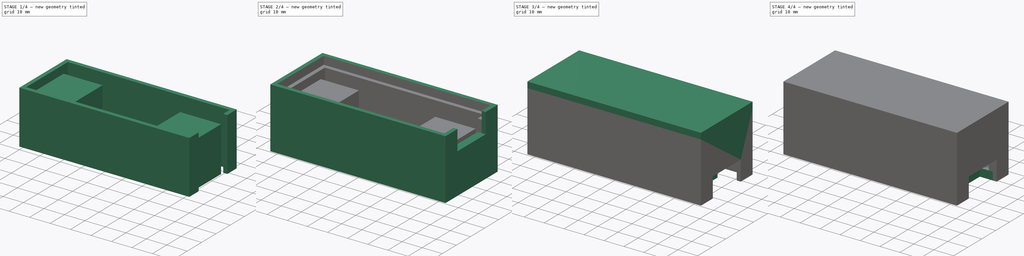
[diagram: build sequence overview — one tinted view per stage of 4, left to right]
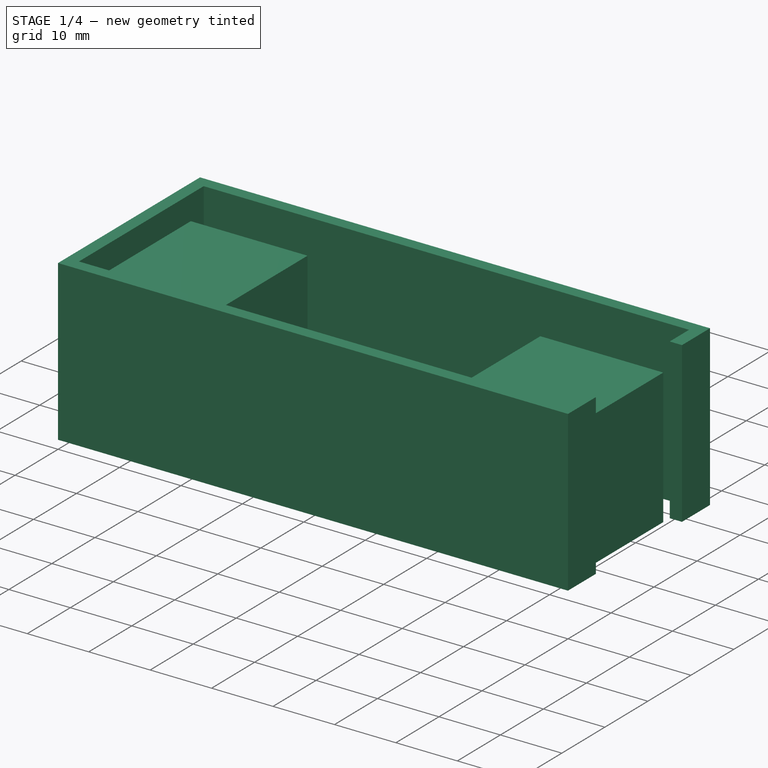
[diagram: stage 1 of 4 — iso view after this stage's code; geometry added in this stage tinted green]
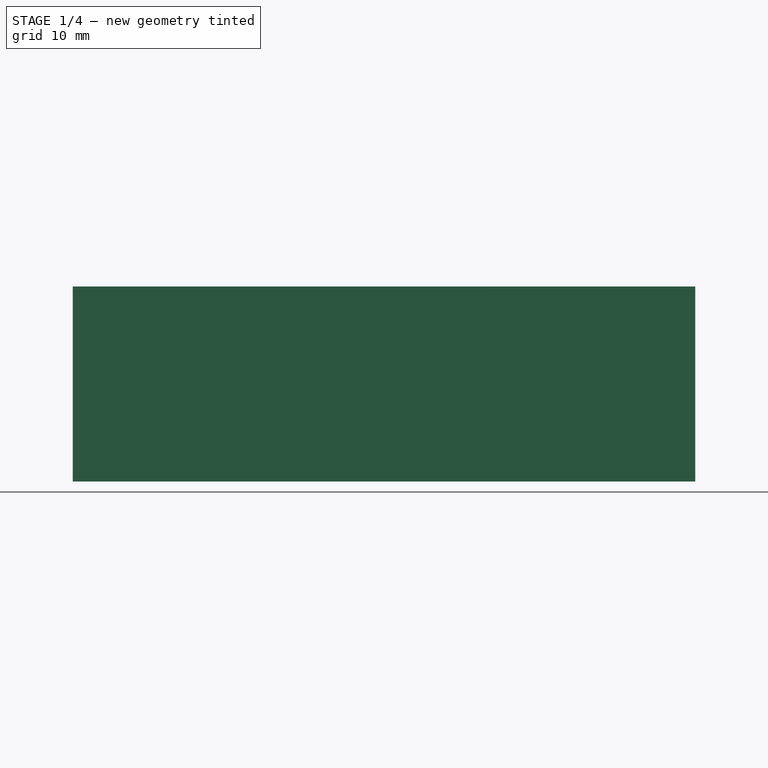
[diagram: stage 1 of 4 — front view after this stage's code; geometry added in this stage tinted green]
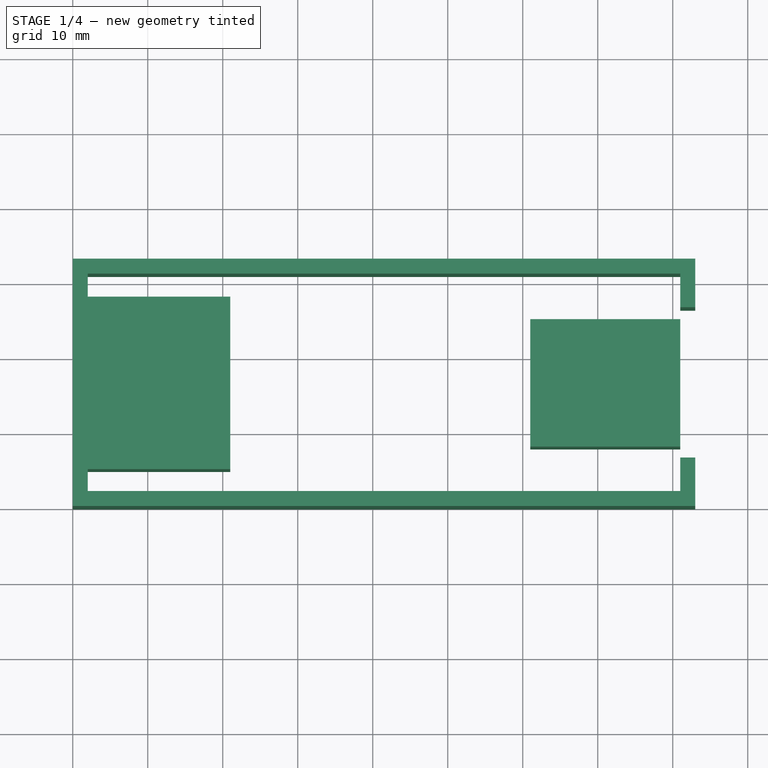
[diagram: stage 1 of 4 — top view after this stage's code; geometry added in this stage tinted green]
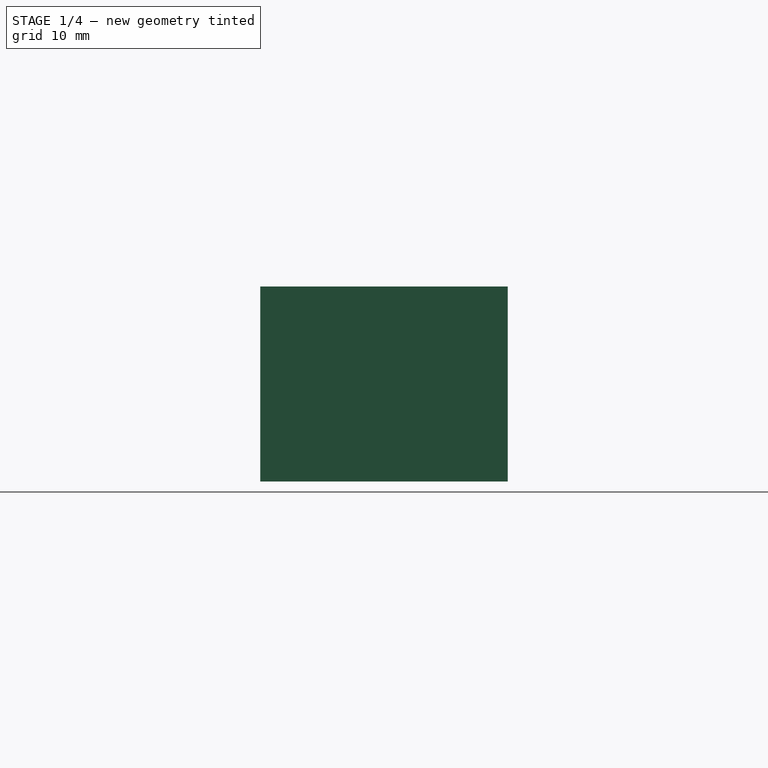
[diagram: stage 1 of 4 — right view after this stage's code; geometry added in this stage tinted green]
FCSTD DOCUMENT  (FreeCAD 1.0R39285 (Git))
Label: GPS
License: All rights reserved
LicenseURL: https://en.wikipedia.org/wiki/All_rights_reserved
objects: PartDesign::Body×10, Sketcher::SketchObject×9, PartDesign::Pad×9, PartDesign::Boolean×3
note: 61 computed .brp shape members not serialized (recipe doc carries the construction recipe); baked Part::Feature solids carry a one-line shape summary decoded from their .brp

FEATURE [PartDesign::Body] Body  label="Cuerpo"
  AllowCompound = false
  Group = -> [Sketch,Pad,Boolean,Boolean001]
  Origin = -> Origin
  Tip = -> Boolean001
FEATURE [Sketcher::SketchObject] Sketch007
  ArcFitTolerance = 1e-06
  AttachmentSupport = -> [XY_Plane007]
  FullyConstrained = true
  MakeInternals = false
  MapMode = 5
  sketch-geometry (4):
    g0: LineSegment StartX=2 StartY=28 StartZ=0 EndX=2 EndY=5 EndZ=0
    g1: LineSegment StartX=2 StartY=5 StartZ=0 EndX=21 EndY=5 EndZ=0
    g2: LineSegment StartX=21 StartY=5 StartZ=0 EndX=21 EndY=28 EndZ=0
    g3: LineSegment StartX=21 StartY=28 StartZ=0 EndX=2 EndY=28 EndZ=0
  constraints (12):
    c: Coincident(g0,g1)
    c: Coincident(g1,g2)
    c: Coincident(g2,g3)
    c: Coincident(g3,g0)
    c: Vertical(g0)
    c: Vertical(g2)
    c: Horizontal(g1)
    c: Horizontal(g3)
    c: Distance(g0,g2) = 19
    c: Distance(g1,g3) = 23
    c: Distance(g0,g-2) = 2
    c: Distance(g-1,g1) = 5
FEATURE [PartDesign::Pad] Pad006
  Direction = (0,0,1)
  Length = 22
  Length2 = 10
  Profile = -> Sketch007
  ReferenceAxis = -> Sketch007 [N_Axis]
  Refine = true
  Suppressed = false
  Type = 0
FEATURE [PartDesign::Body] Body007  label="Cuerpo007"
  AllowCompound = false
  Group = -> [Sketch007,Pad006]
  Origin = -> Origin007
  Placement = pos=(0,0,8) rot=(0,0,1;0rad)
  Tip = -> Pad006
FEATURE [Sketcher::SketchObject] Sketch008
  ArcFitTolerance = 1e-06
  AttachmentSupport = -> [XY_Plane008]
  FullyConstrained = true
  MakeInternals = false
  MapMode = 5
  sketch-geometry (4):
    g0: LineSegment StartX=61 StartY=25 StartZ=0 EndX=61 EndY=8 EndZ=0
    g1: LineSegment StartX=61 StartY=8 StartZ=0 EndX=81 EndY=8 EndZ=0
    g2: LineSegment StartX=81 StartY=8 StartZ=0 EndX=81 EndY=25 EndZ=0
    g3: LineSegment StartX=81 StartY=25 StartZ=0 EndX=61 EndY=25 EndZ=0
  constraints (12):
    c: Coincident(g0,g1)
    c: Coincident(g1,g2)
    c: Coincident(g2,g3)
    c: Coincident(g3,g0)
    c: Vertical(g0)
    c: Vertical(g2)
    c: Horizontal(g1)
    c: Horizontal(g3)
    c: Distance(g0,g2) = 20
    c: Distance(g1,g3) = 17
    c: Distance(g-1,g1) = 8
    c: Distance(g-2,g0) = 61
FEATURE [PartDesign::Pad] Pad007
  Direction = (0,0,1)
  Length = 22
  Length2 = 10
  Profile = -> Sketch008
  ReferenceAxis = -> Sketch008 [N_Axis]
  Refine = true
  Suppressed = false
  Type = 0
FEATURE [PartDesign::Body] Body008  label="Cuerpo008"
  AllowCompound = false
  Group = -> [Sketch008,Pad007]
  Origin = -> Origin008
  Placement = pos=(0,0,8) rot=(0,0,1;0rad)
  Tip = -> Pad007
FEATURE [Sketcher::SketchObject] Sketch009
  ArcFitTolerance = 1e-06
  AttachmentSupport = -> [XY_Plane009]
  FullyConstrained = false
  MakeInternals = false
  MapMode = 5
  sketch-geometry (12):
    g0: LineSegment StartX=0 StartY=0 StartZ=0 EndX=83.0002 EndY=0 EndZ=0
    g1: LineSegment StartX=83.0002 StartY=33.0006 StartZ=0 EndX=0 EndY=33.0006 EndZ=0
    g2: LineSegment StartX=0 StartY=33.0006 StartZ=0 EndX=0 EndY=0 EndZ=0
    g3: LineSegment StartX=2 StartY=2 StartZ=0 EndX=81 EndY=2 EndZ=0
    g4: LineSegment StartX=81 StartY=31 StartZ=0 EndX=2 EndY=31 EndZ=0
    g5: LineSegment StartX=2 StartY=31 StartZ=0 EndX=2 EndY=2 EndZ=0
    g6: LineSegment StartX=83.0002 StartY=6.47963 StartZ=0 EndX=81.0002 EndY=6.47963 EndZ=0
    g7: LineSegment StartX=83.0002 StartY=26.5016 StartZ=0 EndX=81.0002 EndY=26.5016 EndZ=0
    g8: LineSegment StartX=81 StartY=31 StartZ=0 EndX=81.0002 EndY=26.5016 EndZ=0
    g9: LineSegment StartX=81.0002 StartY=6.47963 StartZ=0 EndX=81 EndY=2 EndZ=0
    g10: LineSegment StartX=83.0002 StartY=33.0006 StartZ=0 EndX=83.0002 EndY=26.5016 EndZ=0
    g11: LineSegment StartX=83.0002 StartY=6.47963 StartZ=0 EndX=83.0002 EndY=0 EndZ=0
  constraints (17):
    c: Coincident(g1,g2)
    c: Coincident(g2,g0)
    c: Horizontal(g0)
    c: Horizontal(g1)
    c: Vertical(g2)
    c: Coincident(g0,g-1)
    c: Coincident(g4,g5)
    c: Coincident(g5,g3)
    c: Horizontal(g3)
    c: Horizontal(g4)
    c: Vertical(g5)
    c: Distance(g3,g5) = 79
    c: Distance(g3,g4) = 29
    c: Distance(g3,g-1) = 2
    c: Distance(g5,g-2) = 2
    c: Distance(g6) = 2
    c: Horizontal(g6)
FEATURE [PartDesign::Pad] Pad008
  Direction = (0,0,1)
  Length = 26
  Length2 = 10
  Profile = -> Sketch009
  ReferenceAxis = -> Sketch009 [N_Axis]
  Refine = true
  Suppressed = false
  Type = 0
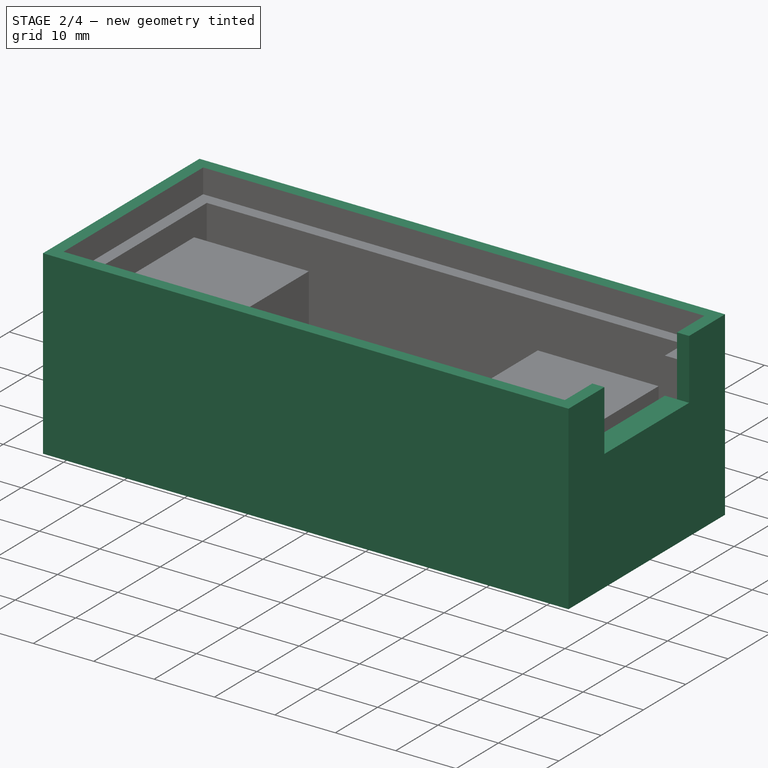
[diagram: stage 2 of 4 — iso view after this stage's code; geometry added in this stage tinted green]
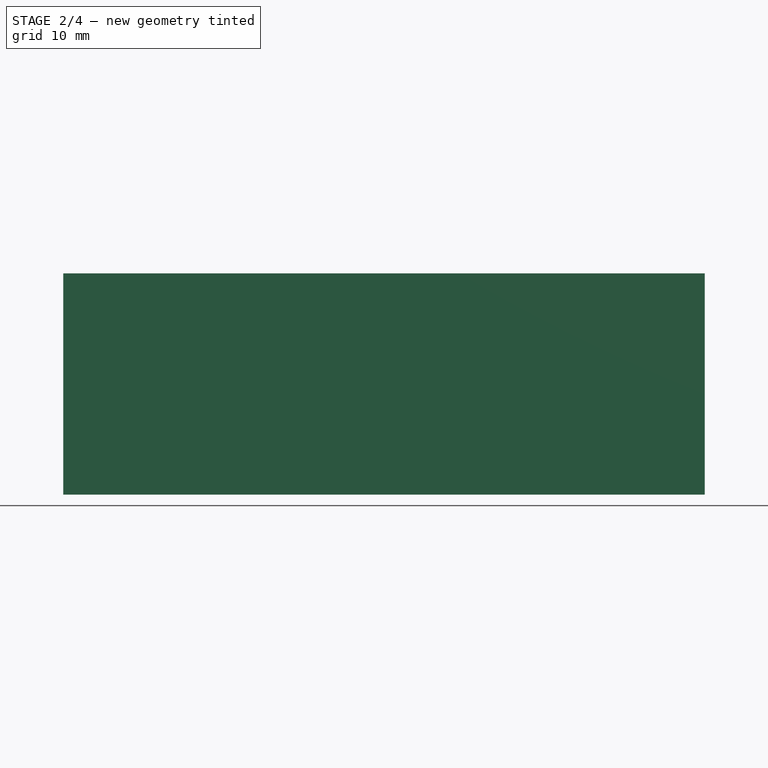
[diagram: stage 2 of 4 — front view after this stage's code; geometry added in this stage tinted green]
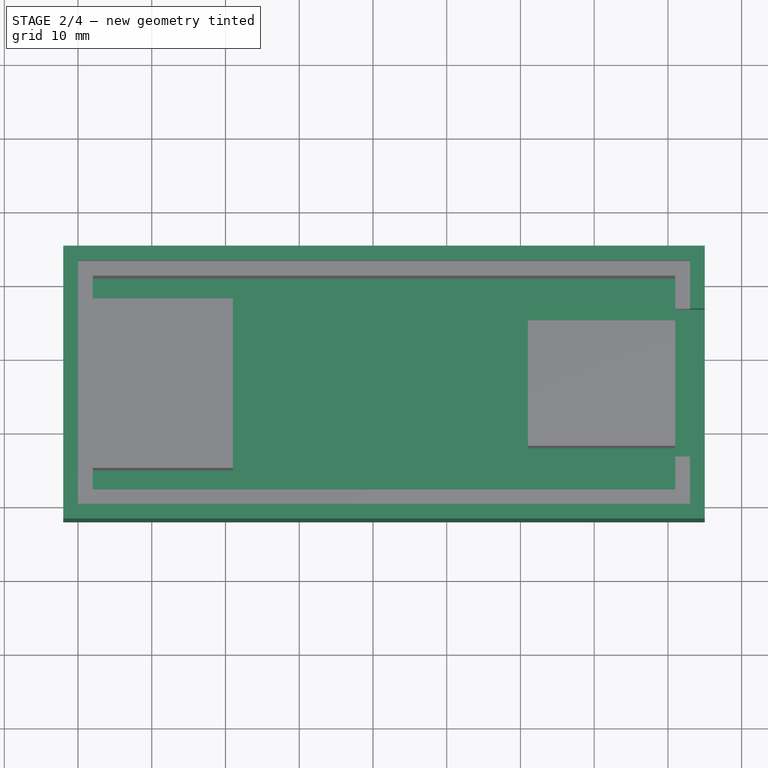
[diagram: stage 2 of 4 — top view after this stage's code; geometry added in this stage tinted green]
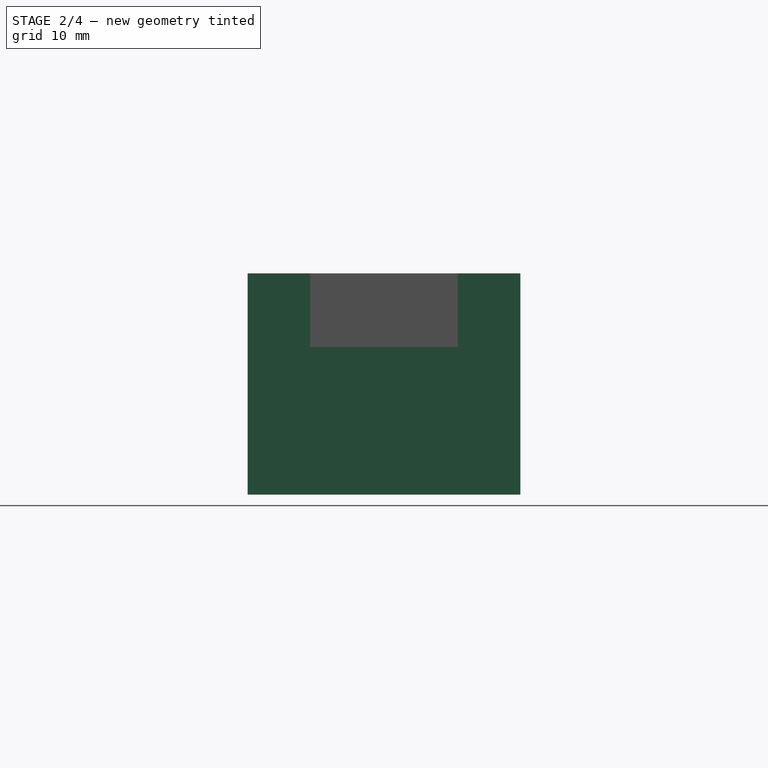
[diagram: stage 2 of 4 — right view after this stage's code; geometry added in this stage tinted green]
FEATURE [Sketcher::SketchObject] Sketch002
  ArcFitTolerance = 1e-06
  AttachmentSupport = -> [XY_Plane002]
  FullyConstrained = false
  MakeInternals = false
  MapMode = 5
  sketch-geometry (13):
    g0: LineSegment StartX=0 StartY=33 StartZ=0 EndX=83 EndY=33 EndZ=0
    g1: LineSegment StartX=83 StartY=33 StartZ=0 EndX=83 EndY=26.503 EndZ=0
    g2: LineSegment StartX=83 StartY=6.48204 StartZ=0 EndX=83 EndY=0 EndZ=0
    g3: LineSegment StartX=83 StartY=0 StartZ=0 EndX=0 EndY=0 EndZ=0
    g4: LineSegment StartX=0 StartY=0 StartZ=0 EndX=0 EndY=33 EndZ=0
    g5: LineSegment StartX=-2.00961 StartY=0 StartZ=0 EndX=-2.00961 EndY=35 EndZ=0
    g6: LineSegment StartX=-2.00961 StartY=35 StartZ=0 EndX=85 EndY=35 EndZ=0
    g7: LineSegment StartX=85 StartY=35 StartZ=0 EndX=85 EndY=26.503 EndZ=0
    g8: LineSegment StartX=85 StartY=26.503 StartZ=0 EndX=83 EndY=26.503 EndZ=0
    g9: LineSegment StartX=-2.00961 StartY=0 StartZ=0 EndX=-2.00961 EndY=-2 EndZ=0
    g10: LineSegment StartX=-2.00961 StartY=-2 StartZ=0 EndX=85 EndY=-2 EndZ=0
    g11: LineSegment StartX=85 StartY=-2 StartZ=0 EndX=85 EndY=6.48204 EndZ=0
    g12: LineSegment StartX=85 StartY=6.48204 StartZ=0 EndX=83 EndY=6.48204 EndZ=0
  constraints (25):
    c: PointOnObject(g0,g-2)
    c: Horizontal(g0)
    c: Coincident(g0,g1)
    c: Vertical(g1)
    c: PointOnObject(g2,g-1)
    c: Vertical(g2)
    c: Coincident(g2,g3)
    c: Coincident(g3,g-1)
    c: Coincident(g3,g4)
    c: Coincident(g4,g0)
    c: PointOnObject(g5,g-1)
    c: Vertical(g5)
    c: Coincident(g5,g6)
    c: Horizontal(g6)
    c: Coincident(g6,g7)
    c: Vertical(g7)
    c: Coincident(g7,g8)
    c: Coincident(g8,g1)
    c: Horizontal(g8)
    c: Coincident(g9,g10)
    c: Horizontal(g10)
    c: Coincident(g10,g11)
    c: Vertical(g11)
    c: Coincident(g11,g12)
    c: Horizontal(g12)
FEATURE [PartDesign::Pad] Pad002
  Direction = (0,0,1)
  Length = 30
  Length2 = 10
  Profile = -> Sketch002
  ReferenceAxis = -> Sketch002 [N_Axis]
  Refine = true
  Suppressed = false
  Type = 0
FEATURE [PartDesign::Body] Body002  label="Cuerpo002"
  AllowCompound = false
  Group = -> [Sketch002,Pad002]
  Origin = -> Origin002
  Tip = -> Pad002
FEATURE [Sketcher::SketchObject] Sketch003
  ArcFitTolerance = 1e-06
  AttachmentSupport = -> [XY_Plane003]
  FullyConstrained = false
  MakeInternals = false
  MapMode = 5
  sketch-geometry (4):
    g0: LineSegment StartX=81 StartY=26.503 StartZ=0 EndX=81 EndY=6.482 EndZ=0
    g1: LineSegment StartX=81 StartY=6.482 StartZ=0 EndX=85 EndY=6.482 EndZ=0
    g2: LineSegment StartX=85 StartY=6.482 StartZ=0 EndX=85 EndY=26.503 EndZ=0
    g3: LineSegment StartX=85 StartY=26.503 StartZ=0 EndX=81 EndY=26.503 EndZ=0
  constraints (10):
    c: Coincident(g0,g1)
    c: Coincident(g1,g2)
    c: Coincident(g2,g3)
    c: Coincident(g3,g0)
    c: Vertical(g0)
    c: Vertical(g2)
    c: Horizontal(g1)
    c: Horizontal(g3)
    c: Distance(g2,g-2) = 85
    c: DistanceX(g3,g3) = 4
FEATURE [PartDesign::Pad] Pad003
  Direction = (0,0,1)
  Length = 20
  Length2 = 10
  Profile = -> Sketch003
  ReferenceAxis = -> Sketch003 [N_Axis]
  Refine = true
  Suppressed = false
  Type = 0
FEATURE [PartDesign::Body] Body003  label="Cuerpo003"
  AllowCompound = false
  Group = -> [Sketch003,Pad003]
  Origin = -> Origin003
  Placement = pos=(0,0,10) rot=(0,0,1;0rad)
  Tip = -> Pad003
FEATURE [Sketcher::SketchObject] Sketch004
  ArcFitTolerance = 1e-06
  AttachmentSupport = -> [XY_Plane004]
  FullyConstrained = false
  MakeInternals = false
  MapMode = 5
  sketch-geometry (4):
    g0: LineSegment StartX=-2.01 StartY=35 StartZ=0 EndX=-2.01 EndY=-2 EndZ=0
    g1: LineSegment StartX=-2.01 StartY=-2 StartZ=0 EndX=85 EndY=-2 EndZ=0
    g2: LineSegment StartX=85 StartY=-2 StartZ=0 EndX=85 EndY=35 EndZ=0
    g3: LineSegment StartX=85 StartY=35 StartZ=0 EndX=-2.01 EndY=35 EndZ=0
  constraints (8):
    c: Coincident(g0,g1)
    c: Coincident(g1,g2)
    c: Coincident(g2,g3)
    c: Coincident(g3,g0)
    c: Vertical(g0)
    c: Vertical(g2)
    c: Horizontal(g1)
    c: Horizontal(g3)
FEATURE [PartDesign::Pad] Pad004
  Direction = (0,0,1)
  Length = 3
  Length2 = 10
  Profile = -> Sketch004
  ReferenceAxis = -> Sketch004 [N_Axis]
  Refine = true
  Suppressed = false
  Type = 0
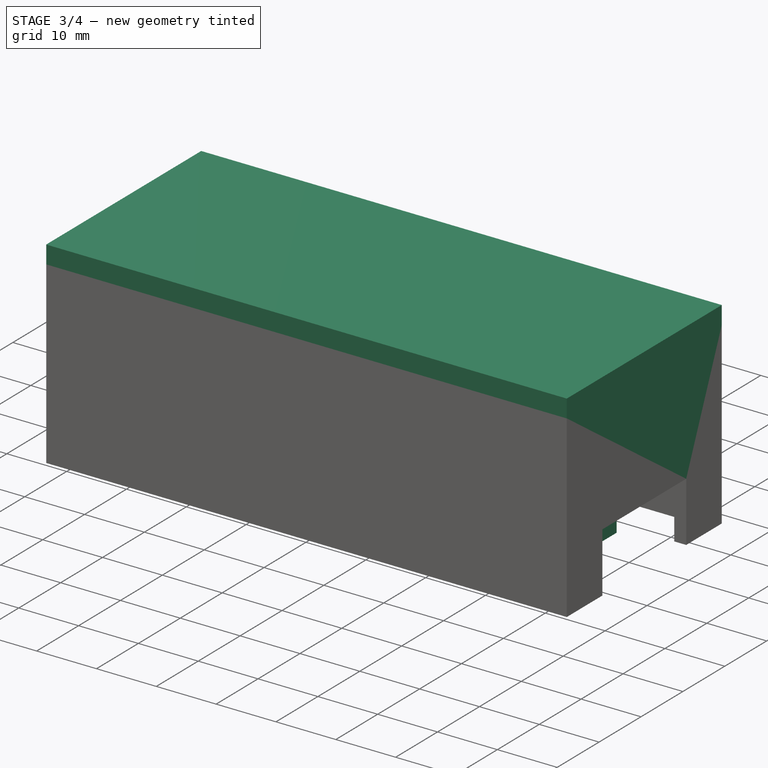
[diagram: stage 3 of 4 — iso view after this stage's code; geometry added in this stage tinted green]
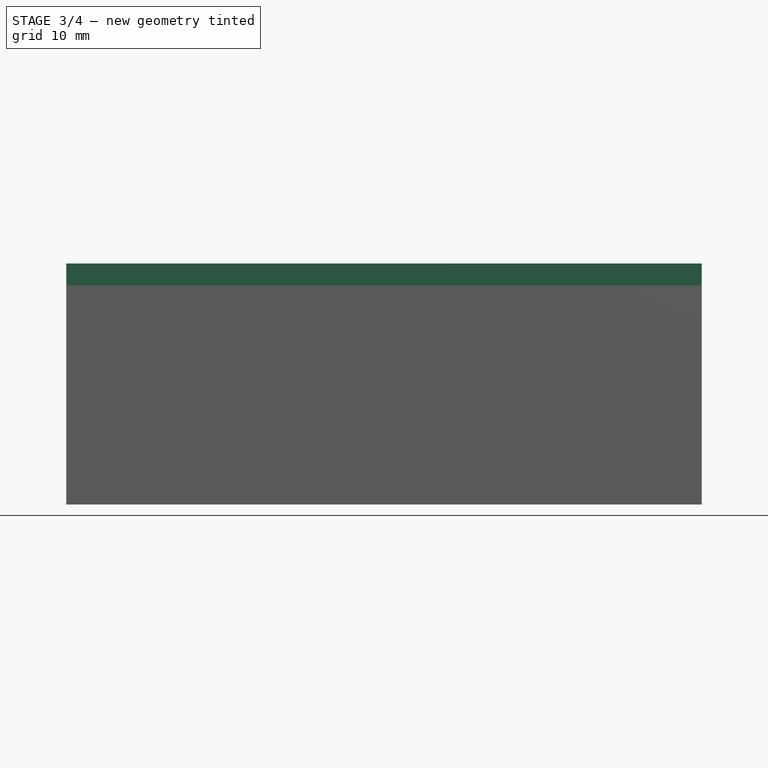
[diagram: stage 3 of 4 — front view after this stage's code; geometry added in this stage tinted green]
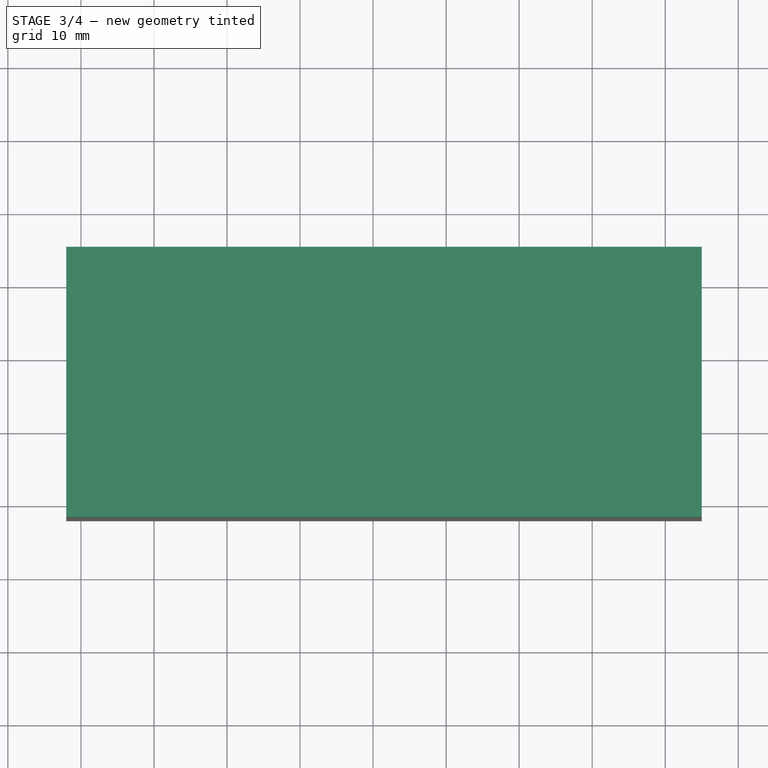
[diagram: stage 3 of 4 — top view after this stage's code; geometry added in this stage tinted green]
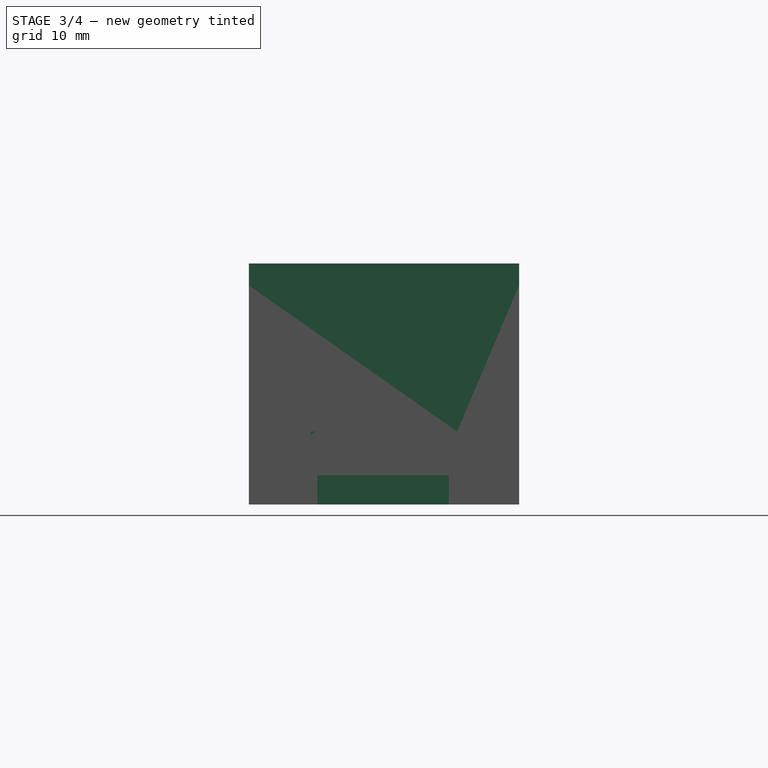
[diagram: stage 3 of 4 — right view after this stage's code; geometry added in this stage tinted green]
FEATURE [Sketcher::SketchObject] Sketch001
  ArcFitTolerance = 1e-06
  AttachmentSupport = -> [XY_Plane001]
  FullyConstrained = false
  MakeInternals = false
  MapMode = 5
  sketch-geometry (4):
    g0: LineSegment StartX=57.9195 StartY=24.283 StartZ=0 EndX=57.9195 EndY=8.283 EndZ=0
    g1: LineSegment StartX=57.9195 StartY=8.283 StartZ=0 EndX=74.9195 EndY=8.283 EndZ=0
    g2: LineSegment StartX=74.9195 StartY=8.283 StartZ=0 EndX=74.9195 EndY=24.283 EndZ=0
    g3: LineSegment StartX=74.9195 StartY=24.283 StartZ=0 EndX=57.9195 EndY=24.283 EndZ=0
  constraints (10):
    c: Coincident(g0,g1)
    c: Coincident(g1,g2)
    c: Coincident(g2,g3)
    c: Coincident(g3,g0)
    c: Vertical(g0)
    c: Vertical(g2)
    c: Horizontal(g1)
    c: Horizontal(g3)
    c: Distance(g0,g2) = 17
    c: Distance(g1,g3) = 16
FEATURE [PartDesign::Pad] Pad001
  Direction = (0,0,1)
  Length = 2
  Length2 = 10
  Profile = -> Sketch001
  ReferenceAxis = -> Sketch001 [N_Axis]
  Refine = true
  Suppressed = false
  Type = 0
FEATURE [PartDesign::Body] Body004  label="Cuerpo004"
  AllowCompound = false
  Group = -> [Sketch004,Pad004]
  Origin = -> Origin004
  Placement = pos=(0,0,30) rot=(0,0,1;0rad)
  Tip = -> Pad004
FEATURE [Sketcher::SketchObject] Sketch005
  ArcFitTolerance = 1e-06
  AttachmentSupport = -> [XY_Plane005]
  FullyConstrained = false
  MakeInternals = false
  MapMode = 5
  sketch-geometry (4):
    g0: LineSegment StartX=58 StartY=25.3808 StartZ=0 EndX=58 EndY=7.38076 EndZ=0
    g1: LineSegment StartX=58 StartY=7.38076 StartZ=0 EndX=60.5 EndY=7.38076 EndZ=0
    g2: LineSegment StartX=60.5 StartY=7.38076 StartZ=0 EndX=60.5 EndY=25.3808 EndZ=0
    g3: LineSegment StartX=60.5 StartY=25.3808 StartZ=0 EndX=58 EndY=25.3808 EndZ=0
  constraints (11):
    c: Coincident(g0,g1)
    c: Coincident(g1,g2)
    c: Coincident(g2,g3)
    c: Coincident(g3,g0)
    c: Vertical(g0)
    c: Vertical(g2)
    c: Horizontal(g1)
    c: Horizontal(g3)
    c: Distance(g0,g2) = 2.5
    c: Distance(g1,g3) = 18
    c: Distance(g0,g-2) = 58
FEATURE [PartDesign::Pad] Pad005
  Direction = (0,0,1)
  Length = 4
  Length2 = 10
  Profile = -> Sketch005
  ReferenceAxis = -> Sketch005 [N_Axis]
  Refine = true
  Suppressed = false
  Type = 0
FEATURE [PartDesign::Body] Body009  label="Cuerpo009"
  AllowCompound = false
  Group = -> [Sketch009,Pad008]
  Origin = -> Origin009
  Placement = pos=(0,0,4) rot=(0,0,1;0rad)
  Tip = -> Pad008
FEATURE [PartDesign::Boolean] Boolean002
  Group = -> [Body003,Body002,Body008,Body007,Body009,Body004]
  Refine = true
  Suppressed = false
  Type = 0
  UsePlacement = true
FEATURE [PartDesign::Body] Body010  label="Cuerpo010"
  AllowCompound = false
  Group = -> [Boolean002]
  Origin = -> Origin010
  Tip = -> Boolean002
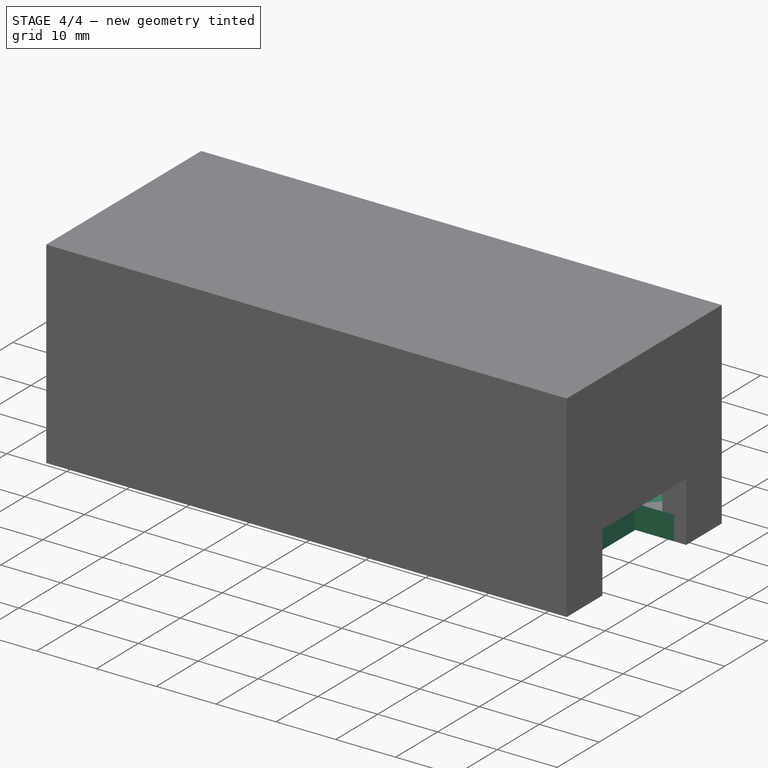
[diagram: stage 4 of 4 — iso view after this stage's code; geometry added in this stage tinted green]
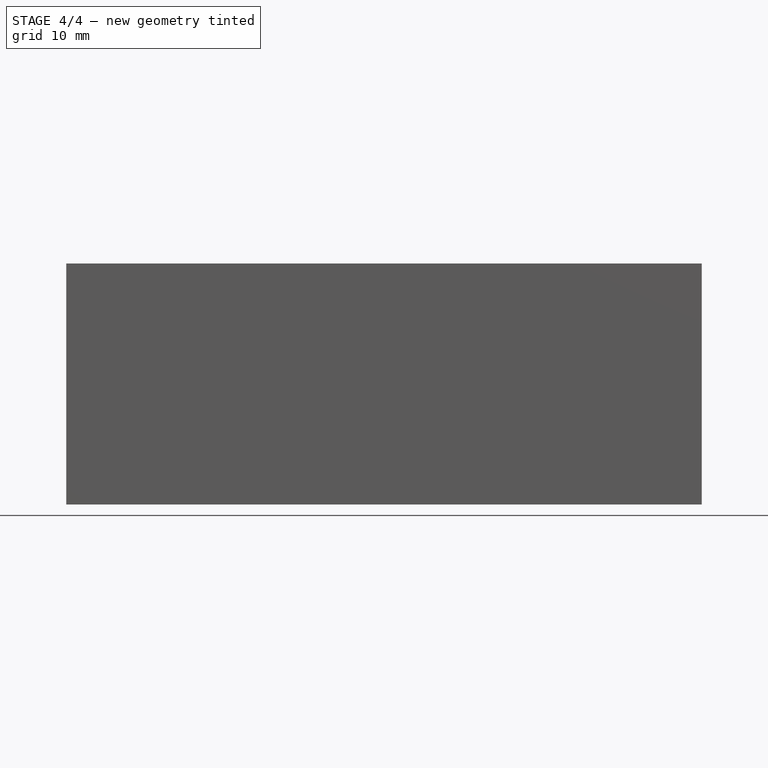
[diagram: stage 4 of 4 — front view after this stage's code; geometry added in this stage tinted green]
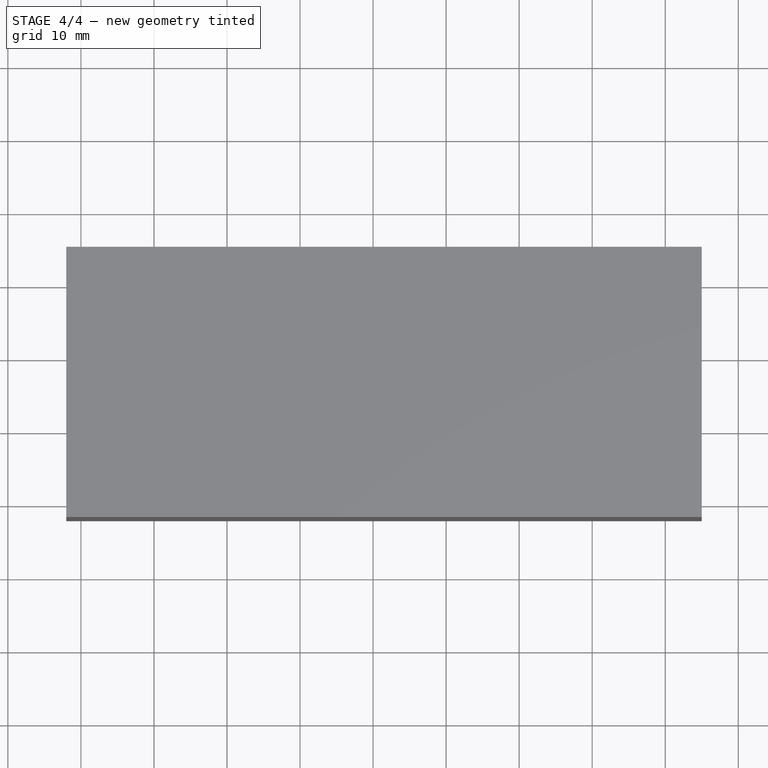
[diagram: stage 4 of 4 — top view after this stage's code; geometry added in this stage tinted green]
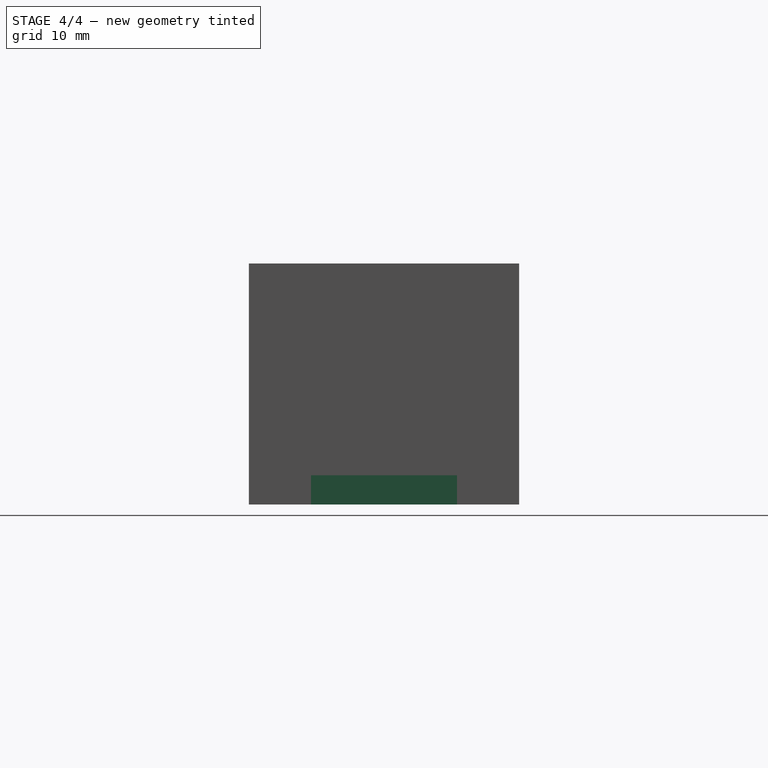
[diagram: stage 4 of 4 — right view after this stage's code; geometry added in this stage tinted green]
FEATURE [Sketcher::SketchObject] Sketch
  ArcFitTolerance = 1e-06
  AttachmentSupport = -> [XY_Plane]
  FullyConstrained = false
  MakeInternals = false
  MapMode = 5
  sketch-geometry (16):
    g0: LineSegment StartX=0 StartY=33.0153 StartZ=0 EndX=0 EndY=0.015301 EndZ=0
    g1: LineSegment StartX=3.5 StartY=28.7828 StartZ=0 EndX=3.5 EndY=3.78284 EndZ=0
    g2: LineSegment StartX=3.5 StartY=3.78284 StartZ=0 EndX=29.5 EndY=3.78284 EndZ=0
    g3: LineSegment StartX=29.5 StartY=3.78284 StartZ=0 EndX=29.5 EndY=28.7828 EndZ=0
    g4: LineSegment StartX=29.5 StartY=28.7828 StartZ=0 EndX=3.5 EndY=28.7828 EndZ=0
    g5: LineSegment StartX=33 StartY=24.2828 StartZ=0 EndX=33 EndY=8.28284 EndZ=0
    g6: LineSegment StartX=33 StartY=8.28284 StartZ=0 EndX=58 EndY=8.28284 EndZ=0
    g7: LineSegment StartX=58 StartY=8.28284 StartZ=0 EndX=58 EndY=24.2828 EndZ=0
    g8: LineSegment StartX=58 StartY=24.2828 StartZ=0 EndX=33 EndY=24.2828 EndZ=0
    g9: LineSegment StartX=83 StartY=33.0153 StartZ=0 EndX=83 EndY=26.5 EndZ=0
    g10: LineSegment StartX=0 StartY=33.0153 StartZ=0 EndX=83 EndY=33.0153 EndZ=0
    g11: LineSegment StartX=76.5 StartY=26.5 StartZ=0 EndX=76.5 EndY=6.5 EndZ=0
    g12: LineSegment StartX=76.5 StartY=26.5 StartZ=0 EndX=83 EndY=26.5 EndZ=0
    g13: LineSegment StartX=76.5 StartY=6.5 StartZ=0 EndX=83 EndY=6.5 EndZ=0
    g14: LineSegment StartX=83 StartY=6.5 StartZ=0 EndX=83 EndY=0.015301 EndZ=0
    g15: LineSegment StartX=83 StartY=0.015301 StartZ=0 EndX=0 EndY=0.015301 EndZ=0
  constraints (38):
    c: Vertical(g0)
    c: Distance(g0,g0) = 33
    c: Coincident(g1,g2)
    c: Coincident(g2,g3)
    c: Coincident(g3,g4)
    c: Coincident(g4,g1)
    c: Vertical(g1)
    c: Vertical(g3)
    c: Horizontal(g2)
    c: Horizontal(g4)
    c: Distance(g1,g3) = 26
    c: Distance(g2,g4) = 25
    c: Distance(g1,g0) = 3.5
    c: Coincident(g5,g6)
    c: Coincident(g6,g7)
    c: Coincident(g7,g8)
    c: Coincident(g8,g5)
    c: Vertical(g5)
    c: Vertical(g7)
    c: Horizontal(g6)
    c: Horizontal(g8)
    c: Distance(g5,g7) = 25
    c: Distance(g6,g8) = 16
    c: Coincident(g10,g0)
    c: Coincident(g10,g9)
    c: Horizontal(g10)
    c: Vertical(g11)
    c: Distance(g3,g5) = 3.5
    c: Coincident(g12,g11)
    c: Coincident(g12,g9)
    c: Horizontal(g12)
    c: Coincident(g13,g11)
    c: Horizontal(g13)
    c: Coincident(g14,g13)
    c: Vertical(g14)
    c: Coincident(g15,g14)
    c: Coincident(g15,g0)
    c: Horizontal(g15)
FEATURE [PartDesign::Pad] Pad
  Direction = (0,0,1)
  Length = 4
  Length2 = 10
  Profile = -> Sketch
  ReferenceAxis = -> Sketch [N_Axis]
  Refine = true
  Suppressed = false
  Type = 0
FEATURE [PartDesign::Body] Body001  label="Cuerpo001"
  AllowCompound = false
  Group = -> [Sketch001,Pad001]
  Origin = -> Origin001
  Placement = pos=(0,0,2) rot=(0,0,1;0rad)
  Tip = -> Pad001
FEATURE [PartDesign::Boolean] Boolean
  BaseFeature = -> Pad
  Group = -> [Body001]
  Refine = true
  Suppressed = false
  Type = 1
  UsePlacement = true
FEATURE [PartDesign::Body] Body005  label="Cuerpo005"
  AllowCompound = false
  Group = -> [Sketch005,Pad005]
  Origin = -> Origin005
  Tip = -> Pad005
FEATURE [PartDesign::Boolean] Boolean001
  BaseFeature = -> Boolean
  Group = -> [Body005]
  Refine = true
  Suppressed = false
  Type = 0
  UsePlacement = true
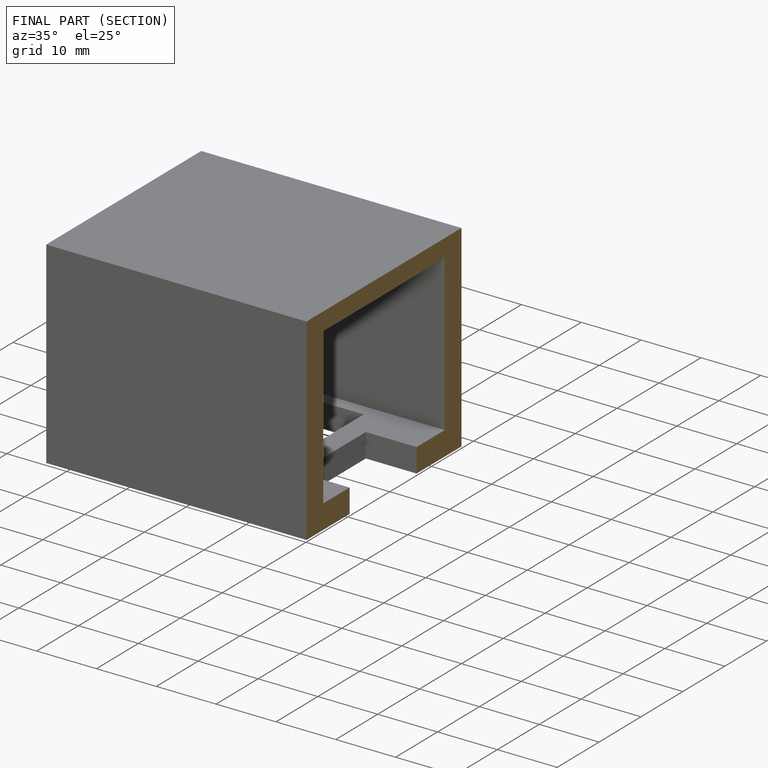
[diagram: finished part — half-section view (interior)]
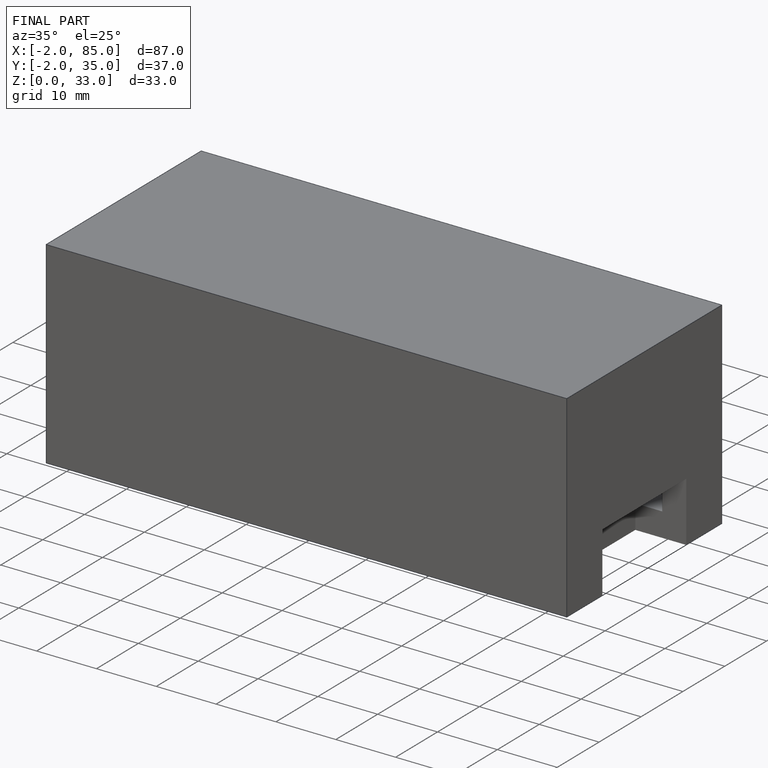
[diagram: finished part — iso view with bounding-box wireframe]
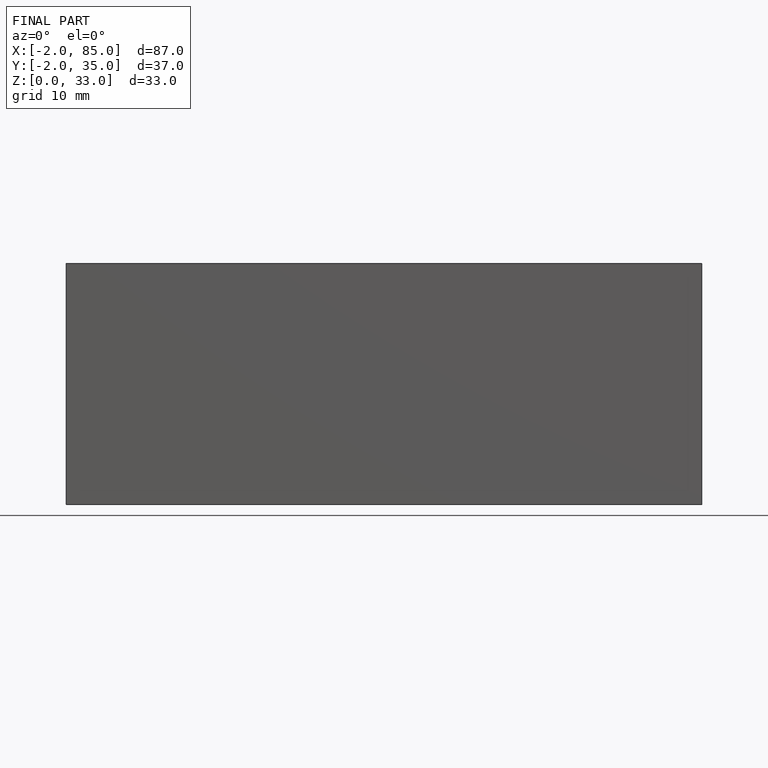
[diagram: finished part — front view with bounding-box wireframe]
